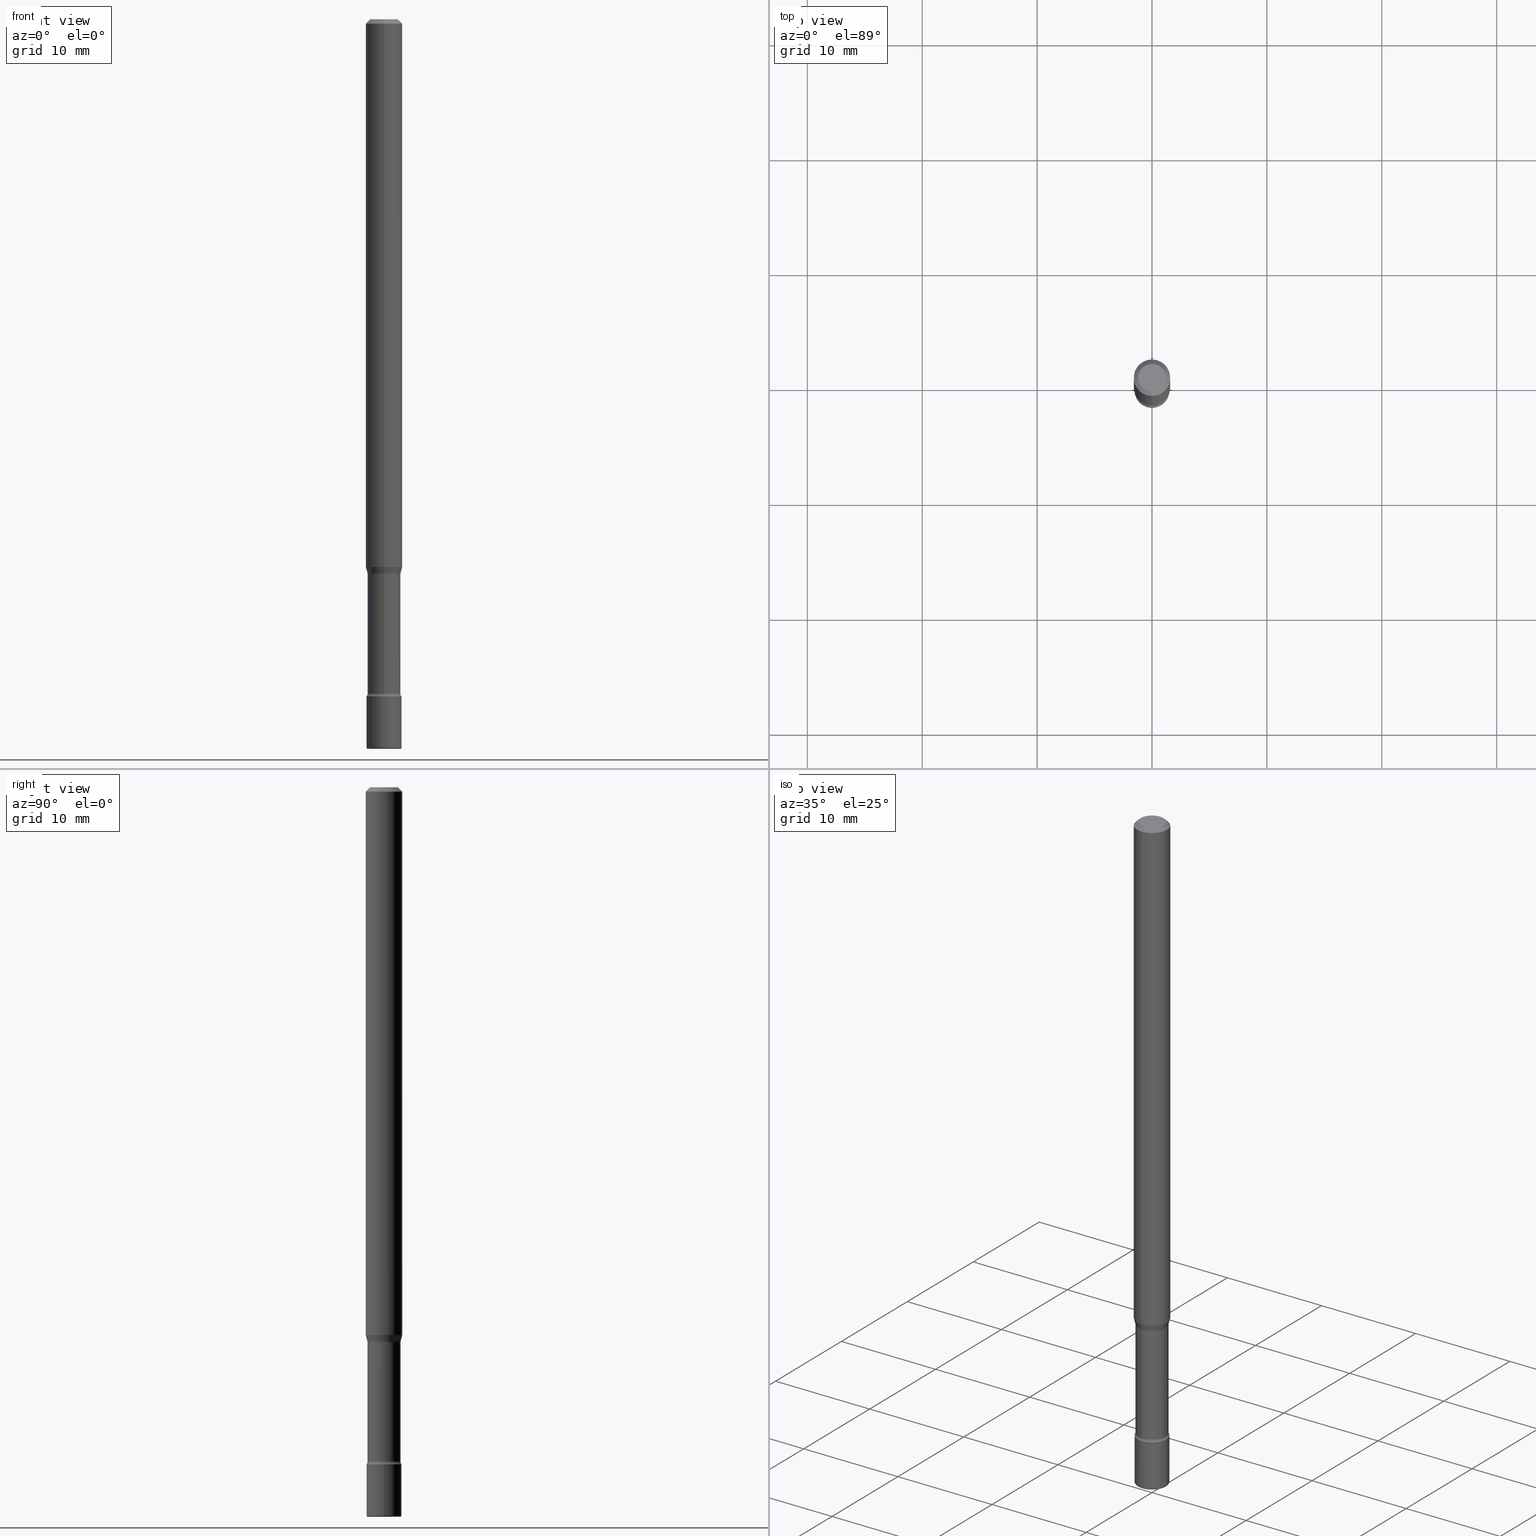
[diagram: canonical four-view strip — front | top / right | iso, engineering-drawing reading convention]
A machine part, canonical four-view strip (front | top / right | iso — engineering-drawing reading convention). The complete STEP part file that produces these views, byte-faithful:
ISO-10303-21;
HEADER;
FILE_DESCRIPTION (( 'STEP AP203' ),
    '1' );
FILE_NAME ('08977.STEP',
    '2024-03-06T20:13:32',
    ( '' ),
    ( '' ),
    'SwSTEP 2.0',
    'SolidWorks 2023',
    '' );
FILE_SCHEMA (( 'CONFIG_CONTROL_DESIGN' ));
ENDSEC;

DATA;
#1 = ADVANCED_FACE ( 'NONE', ( #392 ), #372, .F. ) ;
#2 = DIRECTION ( 'NONE',  ( -6.982962677686265922E-15, -1.000000000000000000, 4.843702116425999219E-15 ) ) ;
#3 = EDGE_LOOP ( 'NONE', ( #312, #232, #455, #241 ) ) ;
#4 = ORIENTED_EDGE ( 'NONE', *, *, #148, .T. ) ;
#5 = DIRECTION ( 'NONE',  ( -6.982962677686265922E-15, -1.000000000000000000, 3.491616935942579411E-15 ) ) ;
#6 = ORIENTED_EDGE ( 'NONE', *, *, #444, .T. ) ;
#7 = APPROVAL_STATUS ( 'not_yet_approved' ) ;
#8 = CARTESIAN_POINT ( 'NONE',  ( 4.641546279787803602E-29, -6.627411925226064456E-15, -1.898092501787273401 ) ) ;
#9 = AXIS2_PLACEMENT_3D ( 'NONE', #486, #393, #175 ) ;
#10 = LOCAL_TIME ( 15, 13, 32.00000000000000000, #327 ) ;
#11 = EDGE_LOOP ( 'NONE', ( #286, #525, #235, #546 ) ) ;
#12 = PERSON_AND_ORGANIZATION ( #212, #395 ) ;
#13 = CARTESIAN_POINT ( 'NONE',  ( -1.169113584055446105E-44, 1.669184350826100908E-30, 4.780733988912460139E-16 ) ) ;
#14 = EDGE_CURVE ( 'NONE', #554, #570, #42, .T. ) ;
#15 = ADVANCED_FACE ( 'NONE', ( #356 ), #350, .F. ) ;
#16 = VERTEX_POINT ( 'NONE', #220 ) ;
#17 = DIRECTION ( 'NONE',  ( -2.445374119236681714E-29, 3.491616935942579411E-15, 1.000000000000000000 ) ) ;
#18 = ORIENTED_EDGE ( 'NONE', *, *, #565, .F. ) ;
#19 = VERTEX_POINT ( 'NONE', #270 ) ;
#20 =( NAMED_UNIT ( * ) SI_UNIT ( $, .STERADIAN. ) SOLID_ANGLE_UNIT ( ) );
#21 = FACE_OUTER_BOUND ( 'NONE', #446, .T. ) ;
#22 = AXIS2_PLACEMENT_3D ( 'NONE', #62, #244, #55 ) ;
#23 = ADVANCED_FACE ( 'NONE', ( #358 ), #296, .F. ) ;
#24 = CIRCLE ( 'NONE', #9, 0.06000000000000001166 ) ;
#25 = DIRECTION ( 'NONE',  ( -2.445374119236681714E-29, 3.491616935942579411E-15, 1.000000000000000000 ) ) ;
#26 = COORDINATED_UNIVERSAL_TIME_OFFSET ( 5, 0, .BEHIND. ) ;
#27 = DIRECTION ( 'NONE',  ( -2.445374119236681714E-29, 3.491616935942579411E-15, 1.000000000000000000 ) ) ;
#28 = ORIENTED_EDGE ( 'NONE', *, *, #123, .F. ) ;
#29 = FACE_OUTER_BOUND ( 'NONE', #199, .T. ) ;
#30 = CYLINDRICAL_SURFACE ( 'NONE', #362, 0.06000000000000001166 ) ;
#31 = AXIS2_PLACEMENT_3D ( 'NONE', #326, #500, #195 ) ;
#32 = CARTESIAN_POINT ( 'NONE',  ( 6.113672015462840371E-29, -8.728703347107863365E-15, -2.499999999999999556 ) ) ;
#33 = APPROVAL ( #453, 'UNSPECIFIED' ) ;
#34 = DIRECTION ( 'NONE',  ( 1.000000000000000000, -6.982962677686266711E-15, 4.876176775795935793E-29 ) ) ;
#35 = DIRECTION ( 'NONE',  ( -2.445374119236681714E-29, 3.491616935942579411E-15, 1.000000000000000000 ) ) ;
#36 = CIRCLE ( 'NONE', #112, 0.01500000000000001853 ) ;
#37 = CIRCLE ( 'NONE', #161, 0.004999999999999767651 ) ;
#38 = UNCERTAINTY_MEASURE_WITH_UNIT (LENGTH_MEASURE( 1.000000000000000082E-05 ), #97, 'distance_accuracy_value', 'NONE');
#39 = CARTESIAN_POINT ( 'NONE',  ( 0.05500000000000001416, -9.112766294380606772E-15, -2.499999999999999556 ) ) ;
#40 = DIRECTION ( 'NONE',  ( -6.982962677686265922E-15, -1.000000000000000000, 3.491616935942579411E-15 ) ) ;
#41 = CARTESIAN_POINT ( 'NONE',  ( -3.938390950214588125E-16, -0.05640000000000663927, -1.901974787463810879 ) ) ;
#42 = LINE ( 'NONE', #92, #120 ) ;
#43 = EDGE_CURVE ( 'NONE', #275, #515, #57, .T. ) ;
#44 = DIRECTION ( 'NONE',  ( -1.000000000000000000, 6.982962677686265922E-15, -4.883557194083112340E-29 ) ) ;
#45 = ORIENTED_EDGE ( 'NONE', *, *, #480, .T. ) ;
#46 = AXIS2_PLACEMENT_3D ( 'NONE', #135, #48, #353 ) ;
#47 = ADVANCED_FACE ( 'NONE', ( #154 ), #415, .T. ) ;
#48 = DIRECTION ( 'NONE',  ( -2.445468806185136597E-29, 3.491481338843145583E-15, 1.000000000000000000 ) ) ;
#49 = CARTESIAN_POINT ( 'NONE',  ( 5.649647131350973229E-29, -8.066198791933100712E-15, -2.310251153914436806 ) ) ;
#50 = EDGE_LOOP ( 'NONE', ( #306, #76, #354, #196 ) ) ;
#51 = DIRECTION ( 'NONE',  ( -1.000000000000000000, 6.982962677686265922E-15, -4.883557194083112340E-29 ) ) ;
#52 = DIRECTION ( 'NONE',  ( -6.982962677686265922E-15, -1.000000000000000000, 3.483106191921935554E-15 ) ) ;
#53 = VERTEX_POINT ( 'NONE', #371 ) ;
#54 = ADVANCED_FACE ( 'NONE', ( #105 ), #170, .T. ) ;
#55 = DIRECTION ( 'NONE',  ( 1.000000000000000000, -6.982962677686262766E-15, 4.883557194083111219E-29 ) ) ;
#56 = VECTOR ( 'NONE', #186, 39.37007874015748143 ) ;
#57 = CIRCLE ( 'NONE', #427, 0.05500000000000001416 ) ;
#58 = CIRCLE ( 'NONE', #305, 0.01500000000000000291 ) ;
#59 = ORIENTED_EDGE ( 'NONE', *, *, #556, .T. ) ;
#60 = CARTESIAN_POINT ( 'NONE',  ( 5.649428380719043834E-29, -8.066512055288535170E-15, -2.310251153914436806 ) ) ;
#61 = EDGE_LOOP ( 'NONE', ( #450, #540, #394, #69 ) ) ;
#62 = CARTESIAN_POINT ( 'NONE',  ( 6.101444671431915719E-29, -8.711245940413648329E-15, -2.495000000000000107 ) ) ;
#63 = EDGE_CURVE ( 'NONE', #399, #402, #361, .T. ) ;
#64 = CARTESIAN_POINT ( 'NONE',  ( -1.169113584055446105E-44, 1.669184350826100908E-30, 4.780733988912460139E-16 ) ) ;
#65 = EDGE_CURVE ( 'NONE', #19, #554, #508, .T. ) ;
#66 = AXIS2_PLACEMENT_3D ( 'NONE', #183, #171, #307 ) ;
#67 = CARTESIAN_POINT ( 'NONE',  ( 4.651220012893355916E-29, -6.640709477380055554E-15, -1.901974787463811323 ) ) ;
#68 = CARTESIAN_POINT ( 'NONE',  ( -4.287811248607203282E-16, -0.06250000000000005551, -0.01499999999999981036 ) ) ;
#69 = ORIENTED_EDGE ( 'NONE', *, *, #518, .F. ) ;
#70 = PERSON_AND_ORGANIZATION ( #212, #395 ) ;
#71 = DIRECTION ( 'NONE',  ( -1.000000000000000000, 7.105427357601061812E-15, 0.000000000000000000 ) ) ;
#72 = ADVANCED_FACE ( 'NONE', ( #21 ), #83, .T. ) ;
#73 = DIRECTION ( 'NONE',  ( 2.445374119236681433E-29, -3.491616935942579411E-15, -1.000000000000000000 ) ) ;
#74 = CIRCLE ( 'NONE', #226, 0.05999999999999999778 ) ;
#75 = LINE ( 'NONE', #386, #122 ) ;
#76 = ORIENTED_EDGE ( 'NONE', *, *, #65, .F. ) ;
#77 = DIRECTION ( 'NONE',  ( 1.000000000000000000, -6.982962677686265922E-15, 4.876176775795935793E-29 ) ) ;
#78 = EDGE_CURVE ( 'NONE', #137, #53, #192, .T. ) ;
#79 = DIRECTION ( 'NONE',  ( -2.445374119236681994E-29, 3.491616935942579411E-15, 1.000000000000000000 ) ) ;
#80 = CIRCLE ( 'NONE', #338, 0.01500000000000000291 ) ;
#81 = DIRECTION ( 'NONE',  ( 2.445374119236681714E-29, -3.491616935942579411E-15, -1.000000000000000000 ) ) ;
#82 = PRODUCT_DEFINITION ( 'UNKNOWN', '', #126, #169 ) ;
#83 = TOROIDAL_SURFACE ( 'NONE', #22, 0.05500000000000000028, 0.004999999999999771988 ) ;
#84 = AXIS2_PLACEMENT_3D ( 'NONE', #526, #290, #259 ) ;
#85 = CC_DESIGN_APPROVAL ( #177, ( #150 ) ) ;
#86 = CARTESIAN_POINT ( 'NONE',  ( 4.007461029686965452E-16, 0.05640000000000001262, 2.811462037040845346E-16 ) ) ;
#87 = ORIENTED_EDGE ( 'NONE', *, *, #383, .T. ) ;
#88 = PLANE ( 'NONE',  #481 ) ;
#89 = EDGE_LOOP ( 'NONE', ( #93, #151, #108, #410 ) ) ;
#90 = ADVANCED_FACE ( 'NONE', ( #274 ), #571, .T. ) ;
#91 = CARTESIAN_POINT ( 'NONE',  ( 6.618217965397815086E-46, -9.462740114103690246E-32, -2.708274633491637065E-17 ) ) ;
#92 = CARTESIAN_POINT ( 'NONE',  ( 4.043777764598424555E-16, 0.05691111260565735741, -1.898092501787273623 ) ) ;
#93 = ORIENTED_EDGE ( 'NONE', *, *, #469, .F. ) ;
#94 = CALENDAR_DATE ( 2024, 6, 3 ) ;
#95 = CARTESIAN_POINT ( 'NONE',  ( 4.263256414561168444E-16, 0.05999999999999190703, -2.320000000000000284 ) ) ;
#96 = ORIENTED_EDGE ( 'NONE', *, *, #484, .T. ) ;
#97 =( CONVERSION_BASED_UNIT ( 'INCH', #106 ) LENGTH_UNIT ( ) NAMED_UNIT ( #231 ) );
#98 = ADVANCED_FACE ( 'NONE', ( #409 ), #511, .T. ) ;
#99 = DIRECTION ( 'NONE',  ( -2.445374119236681714E-29, 3.491616935942579411E-15, 1.000000000000000000 ) ) ;
#100 = APPROVAL_DATE_TIME ( #504, #33 ) ;
#101 = DIRECTION ( 'NONE',  ( -6.982962677686265922E-15, -1.000000000000000000, 4.800201346603757313E-15 ) ) ;
#102 = AXIS2_PLACEMENT_3D ( 'NONE', #478, #73, #429 ) ;
#103 = CIRCLE ( 'NONE', #437, 0.004999999999999767651 ) ;
#104 =( LENGTH_UNIT ( ) NAMED_UNIT ( * ) SI_UNIT ( $, .METRE. ) );
#105 = FACE_OUTER_BOUND ( 'NONE', #145, .T. ) ;
#106 = LENGTH_MEASURE_WITH_UNIT ( LENGTH_MEASURE( 0.02539999999999999897 ), #104 );
#107 = CARTESIAN_POINT ( 'NONE',  ( -0.05999999999999988676, -8.284920298957589417E-15, -2.495000000000000107 ) ) ;
#108 = ORIENTED_EDGE ( 'NONE', *, *, #370, .T. ) ;
#109 = DATE_AND_TIME ( #416, #533 ) ;
#110 = CARTESIAN_POINT ( 'NONE',  ( -0.06000000000000001166, 4.263256414560601944E-16, -2.951361054152943763E-30 ) ) ;
#111 = AXIS2_PLACEMENT_3D ( 'NONE', #285, #321, #101 ) ;
#112 = AXIS2_PLACEMENT_3D ( 'NONE', #363, #139, #317 ) ;
#113 = CARTESIAN_POINT ( 'NONE',  ( 0.000000000000000000, 0.000000000000000000, 0.000000000000000000 ) ) ;
#114 = SECURITY_CLASSIFICATION_LEVEL ( 'unclassified' ) ;
#115 = ADVANCED_FACE ( 'NONE', ( #412 ), #149, .T. ) ;
#116 = CARTESIAN_POINT ( 'NONE',  ( 6.101444671431915719E-29, -8.711245940413648329E-15, -2.495000000000000107 ) ) ;
#117 = CC_DESIGN_PERSON_AND_ORGANIZATION_ASSIGNMENT ( #276, #470, ( #359 ) ) ;
#118 = FACE_OUTER_BOUND ( 'NONE', #3, .T. ) ;
#119 = EDGE_LOOP ( 'NONE', ( #349, #185 ) ) ;
#120 = VECTOR ( 'NONE', #568, 39.37007874015748143 ) ;
#121 = DIRECTION ( 'NONE',  ( -2.438088387897960049E-29, 3.491481338843145188E-15, 1.000000000000000000 ) ) ;
#122 = VECTOR ( 'NONE', #561, 39.37007874015748854 ) ;
#123 = EDGE_CURVE ( 'NONE', #266, #184, #74, .T. ) ;
#124 = DIRECTION ( 'NONE',  ( -2.445374119236681994E-29, 3.491616935942579411E-15, 1.000000000000000000 ) ) ;
#125 = DIRECTION ( 'NONE',  ( 1.000000000000000000, -6.982962677686262766E-15, 4.883557194083111219E-29 ) ) ;
#126 = PRODUCT_DEFINITION_FORMATION_WITH_SPECIFIED_SOURCE ( 'ANY', '', #359, .NOT_KNOWN. ) ;
#127 = CARTESIAN_POINT ( 'NONE',  ( 4.364351673553919652E-16, 0.06249999999999995143, -0.01500000000000024578 ) ) ;
#128 = CLOSED_SHELL ( 'NONE', ( #221, #351, #222, #345, #72, #249 ) ) ;
#129 = ORIENTED_EDGE ( 'NONE', *, *, #463, .F. ) ;
#130 = AXIS2_PLACEMENT_3D ( 'NONE', #113, #258, #213 ) ;
#131 = APPROVAL_PERSON_ORGANIZATION ( #544, #33, #147 ) ;
#132 = DIRECTION ( 'NONE',  ( -6.982962677686263555E-15, -1.000000000000000000, 0.000000000000000000 ) ) ;
#133 = EDGE_CURVE ( 'NONE', #16, #507, #299, .T. ) ;
#134 = ORIENTED_EDGE ( 'NONE', *, *, #262, .F. ) ;
#135 = CARTESIAN_POINT ( 'NONE',  ( 5.673487630349517039E-29, -8.100236706116098414E-15, -2.320000000000000284 ) ) ;
#136 = ORIENTED_EDGE ( 'NONE', *, *, #253, .T. ) ;
#137 = VERTEX_POINT ( 'NONE', #107 ) ;
#138 = CARTESIAN_POINT ( 'NONE',  ( 4.440892098501085673E-16, 0.06249999999999347050, -1.877234490073830253 ) ) ;
#139 = DIRECTION ( 'NONE',  ( 1.000000000000000000, -7.105427357601001070E-15, 4.926317169127620293E-29 ) ) ;
#140 = EDGE_CURVE ( 'NONE', #554, #19, #474, .T. ) ;
#141 = AXIS2_PLACEMENT_3D ( 'NONE', #294, #475, #422 ) ;
#142 = ORIENTED_EDGE ( 'NONE', *, *, #484, .F. ) ;
#143 = COORDINATED_UNIVERSAL_TIME_OFFSET ( 5, 0, .BEHIND. ) ;
#144 = CARTESIAN_POINT ( 'NONE',  ( 3.668061178855029262E-31, -5.237425403913879570E-17, -0.01500000000000002720 ) ) ;
#145 = EDGE_LOOP ( 'NONE', ( #180, #560, #272, #439 ) ) ;
#146 = CARTESIAN_POINT ( 'NONE',  ( 5.673267956629101509E-29, -8.100551291386784361E-15, -2.320000000000000284 ) ) ;
#147 = APPROVAL_ROLE ( '' ) ;
#148 = EDGE_CURVE ( 'NONE', #570, #229, #256, .T. ) ;
#149 = CYLINDRICAL_SURFACE ( 'NONE', #396, 0.06250000000000000000 ) ;
#150 = SECURITY_CLASSIFICATION ( '', '', #114 ) ;
#151 = ORIENTED_EDGE ( 'NONE', *, *, #423, .T. ) ;
#152 = AXIS2_PLACEMENT_3D ( 'NONE', #198, #454, #52 ) ;
#153 = DIRECTION ( 'NONE',  ( 1.000000000000000000, 0.000000000000000000, 0.000000000000000000 ) ) ;
#154 = FACE_OUTER_BOUND ( 'NONE', #230, .T. ) ;
#155 = MANIFOLD_SOLID_BREP ( 'Body-Move/Copy2[1]', #128 ) ;
#156 = ORIENTED_EDGE ( 'NONE', *, *, #444, .F. ) ;
#157 = CARTESIAN_POINT ( 'NONE',  ( 5.649647131350973229E-29, -8.066198791933100712E-15, -2.310251153914436806 ) ) ;
#158 = FACE_OUTER_BOUND ( 'NONE', #224, .T. ) ;
#159 = EDGE_CURVE ( 'NONE', #554, #360, #36, .T. ) ;
#160 = EDGE_CURVE ( 'NONE', #227, #496, #418, .T. ) ;
#161 = AXIS2_PLACEMENT_3D ( 'NONE', #477, #207, #295 ) ;
#162 = APPROVAL_PERSON_ORGANIZATION ( #548, #435, #499 ) ;
#163 = PLANE ( 'NONE',  #352 ) ;
#164 = CALENDAR_DATE ( 2024, 6, 3 ) ;
#165 = DIRECTION ( 'NONE',  ( -2.445468806185136597E-29, 3.491481338843145583E-15, 1.000000000000000000 ) ) ;
#166 = ORIENTED_EDGE ( 'NONE', *, *, #480, .F. ) ;
#167 = COORDINATED_UNIVERSAL_TIME_OFFSET ( 5, 0, .BEHIND. ) ;
#168 = FACE_OUTER_BOUND ( 'NONE', #452, .T. ) ;
#169 = DESIGN_CONTEXT ( 'detailed design', #550, 'design' ) ;
#170 = CONICAL_SURFACE ( 'NONE', #216, 0.06250000000000000000, 0.7853981633974485010 ) ;
#171 = DIRECTION ( 'NONE',  ( -2.445374119236681714E-29, 3.491616935942579411E-15, 1.000000000000000000 ) ) ;
#172 = CIRCLE ( 'NONE', #247, 0.04749999999999998668 ) ;
#173 = CARTESIAN_POINT ( 'NONE',  ( 4.440892098501086659E-16, 0.06249999999999993755, -0.01500000000000024578 ) ) ;
#174 = ORIENTED_EDGE ( 'NONE', *, *, #253, .F. ) ;
#175 = DIRECTION ( 'NONE',  ( 1.000000000000000000, -6.982962677686266711E-15, 0.000000000000000000 ) ) ;
#176 = ORIENTED_EDGE ( 'NONE', *, *, #423, .F. ) ;
#177 = APPROVAL ( #379, 'UNSPECIFIED' ) ;
#178 = LOCAL_TIME ( 15, 13, 32.00000000000000000, #236 ) ;
#179 = CARTESIAN_POINT ( 'NONE',  ( 4.189777606612326922E-16, 0.05999999999999190009, -2.320000000000000284 ) ) ;
#180 = ORIENTED_EDGE ( 'NONE', *, *, #489, .F. ) ;
#181 = TOROIDAL_SURFACE ( 'NONE', #291, 0.05500000000000000028, 0.004999999999999771988 ) ;
#182 = APPROVAL_PERSON_ORGANIZATION ( #70, #177, #420 ) ;
#183 = CARTESIAN_POINT ( 'NONE',  ( 4.651039920704693219E-29, -6.640967379644431194E-15, -1.901974787463811323 ) ) ;
#184 = VERTEX_POINT ( 'NONE', #95 ) ;
#185 = ORIENTED_EDGE ( 'NONE', *, *, #489, .T. ) ;
#186 = DIRECTION ( 'NONE',  ( -2.445374119236681994E-29, 3.491616935942579411E-15, 1.000000000000000000 ) ) ;
#187 = EDGE_CURVE ( 'NONE', #507, #16, #397, .T. ) ;
#188 = ORIENTED_EDGE ( 'NONE', *, *, #187, .F. ) ;
#189 = ORIENTED_EDGE ( 'NONE', *, *, #65, .T. ) ;
#190 = PERSON_AND_ORGANIZATION_ROLE ( 'creator' ) ;
#191 = DIRECTION ( 'NONE',  ( -6.982962677686265133E-15, -1.000000000000000000, 3.491616935942579411E-15 ) ) ;
#192 = CIRCLE ( 'NONE', #407, 0.06000000000000001166 ) ;
#193 = ORIENTED_EDGE ( 'NONE', *, *, #443, .F. ) ;
#194 = PERSON_AND_ORGANIZATION_ROLE ( 'design_supplier' ) ;
#195 = DIRECTION ( 'NONE',  ( 1.000000000000000000, -6.982962677686268288E-15, 0.000000000000000000 ) ) ;
#196 = ORIENTED_EDGE ( 'NONE', *, *, #432, .T. ) ;
#197 = DIRECTION ( 'NONE',  ( 0.000000000000000000, 0.000000000000000000, 1.000000000000000000 ) ) ;
#198 = CARTESIAN_POINT ( 'NONE',  ( 3.668061178855029262E-31, -5.237425403913879570E-17, -0.01500000000000002720 ) ) ;
#199 = EDGE_LOOP ( 'NONE', ( #243, #488, #314, #193 ) ) ;
#200 = APPLICATION_PROTOCOL_DEFINITION ( 'international standard', 'config_control_design', 1994, #464 ) ;
#201 = DIRECTION ( 'NONE',  ( -6.982962677686265922E-15, -1.000000000000000000, 3.491616935942578228E-15 ) ) ;
#202 = AXIS2_PLACEMENT_3D ( 'NONE', #8, #502, #280 ) ;
#203 = CONICAL_SURFACE ( 'NONE', #337, 0.05691111260566398405, 0.2617993877991477980 ) ;
#204 = CARTESIAN_POINT ( 'NONE',  ( 4.590540637765013865E-29, -6.554583738277316538E-15, -1.877234490073830031 ) ) ;
#205 = LINE ( 'NONE', #68, #300 ) ;
#206 = CC_DESIGN_PERSON_AND_ORGANIZATION_ASSIGNMENT ( #403, #190, ( #126 ) ) ;
#207 = DIRECTION ( 'NONE',  ( -6.982962677686266711E-15, -1.000000000000000000, 3.491481338843145583E-15 ) ) ;
#208 = AXIS2_PLACEMENT_3D ( 'NONE', #313, #263, #440 ) ;
#209 = LOCAL_TIME ( 15, 13, 32.00000000000000000, #143 ) ;
#210 = CYLINDRICAL_SURFACE ( 'NONE', #84, 0.06250000000000000000 ) ;
#211 = DIRECTION ( 'NONE',  ( -2.445468806185136597E-29, 3.491481338843145583E-15, 1.000000000000000000 ) ) ;
#212 = PERSON ( 'UNSPECIFIED', 'UNSPECIFIED', 'UNSPECIFIED', ('UNSPECIFIED'), ('UNSPECIFIED'), ('UNSPECIFIED') ) ;
#213 = DIRECTION ( 'NONE',  ( 1.000000000000000000, -6.982962677686266711E-15, 4.876176775795935793E-29 ) ) ;
#214 = CARTESIAN_POINT ( 'NONE',  ( -4.364351673553456197E-16, -0.06250000000000653644, -1.877234490073829587 ) ) ;
#215 = ADVANCED_FACE ( 'NONE', ( #234 ), #373, .F. ) ;
#216 = AXIS2_PLACEMENT_3D ( 'NONE', #144, #366, #467 ) ;
#217 = CARTESIAN_POINT ( 'NONE',  ( -4.985835351867528230E-16, -0.07140000000000663871, -1.901974787463810879 ) ) ;
#218 = AXIS2_PLACEMENT_3D ( 'NONE', #562, #35, #2 ) ;
#219 = CARTESIAN_POINT ( 'NONE',  ( 0.06000000000000001166, -4.189777606611760914E-16, 2.925706065477562106E-30 ) ) ;
#220 = CARTESIAN_POINT ( 'NONE',  ( -4.364351673553912750E-16, -0.06250000000000005551, -0.01499999999999981036 ) ) ;
#221 = ADVANCED_FACE ( 'NONE', ( #483 ), #30, .T. ) ;
#222 = ADVANCED_FACE ( 'NONE', ( #557 ), #163, .T. ) ;
#223 = CARTESIAN_POINT ( 'NONE',  ( 3.668061178855029262E-31, -5.237425403913879570E-17, -0.01500000000000002720 ) ) ;
#224 = EDGE_LOOP ( 'NONE', ( #166, #357 ) ) ;
#225 = DIRECTION ( 'NONE',  ( -6.982962677686265922E-15, -1.000000000000000000, 4.553079989440439092E-15 ) ) ;
#226 = AXIS2_PLACEMENT_3D ( 'NONE', #146, #240, #417 ) ;
#227 = VERTEX_POINT ( 'NONE', #521 ) ;
#228 = EDGE_CURVE ( 'NONE', #566, #16, #205, .T. ) ;
#229 = VERTEX_POINT ( 'NONE', #214 ) ;
#230 = EDGE_LOOP ( 'NONE', ( #492, #530, #472, #142 ) ) ;
#231 = DIMENSIONAL_EXPONENTS ( 1.000000000000000000, 0.000000000000000000, 0.000000000000000000, 0.000000000000000000, 0.000000000000000000, 0.000000000000000000, 0.000000000000000000 ) ;
#232 = ORIENTED_EDGE ( 'NONE', *, *, #78, .T. ) ;
#233 = APPROVAL_DATE_TIME ( #273, #435 ) ;
#234 = FACE_OUTER_BOUND ( 'NONE', #89, .T. ) ;
#235 = ORIENTED_EDGE ( 'NONE', *, *, #262, .T. ) ;
#236 = COORDINATED_UNIVERSAL_TIME_OFFSET ( 5, 0, .BEHIND. ) ;
#237 = CARTESIAN_POINT ( 'NONE',  ( 4.641546279787803602E-29, -6.627411925226064456E-15, -1.898092501787273401 ) ) ;
#238 = CIRCLE ( 'NONE', #66, 0.05639999999999999181 ) ;
#239 = EDGE_LOOP ( 'NONE', ( #341, #87, #494, #156 ) ) ;
#240 = DIRECTION ( 'NONE',  ( -2.445374119236681714E-29, 3.491616935942579411E-15, 1.000000000000000000 ) ) ;
#241 = ORIENTED_EDGE ( 'NONE', *, *, #160, .F. ) ;
#242 = EDGE_CURVE ( 'NONE', #137, #227, #301, .T. ) ;
#243 = ORIENTED_EDGE ( 'NONE', *, *, #140, .F. ) ;
#244 = DIRECTION ( 'NONE',  ( -2.445468806185136597E-29, 3.491481338843145583E-15, 1.000000000000000000 ) ) ;
#245 = SHAPE_DEFINITION_REPRESENTATION ( #468, #387 ) ;
#246 = DIRECTION ( 'NONE',  ( 1.000000000000000000, -6.982962677686266711E-15, 0.000000000000000000 ) ) ;
#247 = AXIS2_PLACEMENT_3D ( 'NONE', #421, #27, #378 ) ;
#248 = DATE_TIME_ROLE ( 'classification_date' ) ;
#249 = ADVANCED_FACE ( 'NONE', ( #118 ), #479, .T. ) ;
#250 = DIRECTION ( 'NONE',  ( -6.982962677686265922E-15, -1.000000000000000000, 3.491616935942579411E-15 ) ) ;
#251 = DIRECTION ( 'NONE',  ( -2.445374119236681714E-29, 3.491616935942579411E-15, 1.000000000000000000 ) ) ;
#252 = DIRECTION ( 'NONE',  ( -2.445374119236681714E-29, 3.491616935942579411E-15, 1.000000000000000000 ) ) ;
#253 = EDGE_CURVE ( 'NONE', #275, #137, #103, .T. ) ;
#254 = DIRECTION ( 'NONE',  ( -2.445374119236681714E-29, 3.491616935942579411E-15, 1.000000000000000000 ) ) ;
#255 = AXIS2_PLACEMENT_3D ( 'NONE', #514, #25, #191 ) ;
#256 = CIRCLE ( 'NONE', #572, 0.06250000000000000000 ) ;
#257 = APPROVAL_DATE_TIME ( #109, #177 ) ;
#258 = DIRECTION ( 'NONE',  ( -2.445468806185136597E-29, 3.491481338843145583E-15, 1.000000000000000000 ) ) ;
#259 = DIRECTION ( 'NONE',  ( -6.982962677686265922E-15, -1.000000000000000000, 3.491616935942578228E-15 ) ) ;
#260 = FACE_OUTER_BOUND ( 'NONE', #319, .T. ) ;
#261 = VECTOR ( 'NONE', #445, 39.37007874015748143 ) ;
#262 = EDGE_CURVE ( 'NONE', #19, #229, #75, .T. ) ;
#263 = DIRECTION ( 'NONE',  ( -2.445468806185136597E-29, 3.491481338843145583E-15, 1.000000000000000000 ) ) ;
#264 = LOCAL_TIME ( 15, 13, 32.00000000000000000, #167 ) ;
#265 = CARTESIAN_POINT ( 'NONE',  ( 3.840629472727447874E-16, 0.04749999999999998668, -1.929345507921888436E-16 ) ) ;
#266 = VERTEX_POINT ( 'NONE', #517 ) ;
#267 = DIRECTION ( 'NONE',  ( -2.445374119236681714E-29, 3.491616935942579411E-15, 1.000000000000000000 ) ) ;
#268 = EDGE_LOOP ( 'NONE', ( #28, #537 ) ) ;
#269 = DIRECTION ( 'NONE',  ( -6.982962677686265922E-15, -1.000000000000000000, 3.491616935942579411E-15 ) ) ;
#270 = CARTESIAN_POINT ( 'NONE',  ( -3.974081752709055496E-16, -0.05691111260567060376, -1.898092501787272957 ) ) ;
#271 = AXIS2_PLACEMENT_3D ( 'NONE', #355, #346, #538 ) ;
#272 = ORIENTED_EDGE ( 'NONE', *, *, #133, .T. ) ;
#273 = DATE_AND_TIME ( #94, #10 ) ;
#274 = FACE_OUTER_BOUND ( 'NONE', #11, .T. ) ;
#275 = VERTEX_POINT ( 'NONE', #430 ) ;
#276 = PERSON_AND_ORGANIZATION ( #212, #395 ) ;
#277 = DIRECTION ( 'NONE',  ( 1.000000000000000000, -6.982962677686260400E-15, 0.000000000000000000 ) ) ;
#278 = ORIENTED_EDGE ( 'NONE', *, *, #469, .T. ) ;
#279 = CARTESIAN_POINT ( 'NONE',  ( 4.242334931549755361E-16, 0.05691111260565735741, -1.898092501787273623 ) ) ;
#280 = DIRECTION ( 'NONE',  ( -6.982962677686265922E-15, -1.000000000000000000, 4.800201346603757313E-15 ) ) ;
#281 = CC_DESIGN_DATE_AND_TIME_ASSIGNMENT ( #516, #248, ( #150 ) ) ;
#282 = VECTOR ( 'NONE', #124, 39.37007874015748143 ) ;
#283 = CC_DESIGN_APPROVAL ( #33, ( #82 ) ) ;
#284 = CARTESIAN_POINT ( 'NONE',  ( -4.985835351867431595E-16, -0.07140000000000810976, -2.310251153914436806 ) ) ;
#285 = CARTESIAN_POINT ( 'NONE',  ( 4.641546279787803602E-29, -6.627411925226064456E-15, -1.898092501787273401 ) ) ;
#286 = ORIENTED_EDGE ( 'NONE', *, *, #14, .F. ) ;
#287 = DIRECTION ( 'NONE',  ( -6.982962677686266711E-15, -1.000000000000000000, 0.000000000000000000 ) ) ;
#288 = DIRECTION ( 'NONE',  ( -2.445374119236681714E-29, 3.491616935942579411E-15, 1.000000000000000000 ) ) ;
#289 = EDGE_CURVE ( 'NONE', #515, #53, #37, .T. ) ;
#290 = DIRECTION ( 'NONE',  ( -2.445374119236681714E-29, 3.491616935942579411E-15, 1.000000000000000000 ) ) ;
#291 = AXIS2_PLACEMENT_3D ( 'NONE', #116, #426, #125 ) ;
#292 = AXIS2_PLACEMENT_3D ( 'NONE', #157, #251, #555 ) ;
#293 = CC_DESIGN_DATE_AND_TIME_ASSIGNMENT ( #456, #513, ( #82 ) ) ;
#294 = CARTESIAN_POINT ( 'NONE',  ( 3.840629472728058748E-16, 0.05499999999999128503, -2.500000000000000000 ) ) ;
#295 = DIRECTION ( 'NONE',  ( 1.000000000000000000, -6.982962677686463137E-15, 0.000000000000000000 ) ) ;
#296 = PLANE ( 'NONE',  #102 ) ;
#297 = CARTESIAN_POINT ( 'NONE',  ( 5.673487630349517039E-29, -8.100236706116098414E-15, -2.320000000000000284 ) ) ;
#298 = ORIENTED_EDGE ( 'NONE', *, *, #457, .T. ) ;
#299 = CIRCLE ( 'NONE', #447, 0.06250000000000000000 ) ;
#300 = VECTOR ( 'NONE', #340, 39.37007874015748143 ) ;
#301 = LINE ( 'NONE', #110, #542 ) ;
#302 = DIRECTION ( 'NONE',  ( -6.982962677686265133E-15, -1.000000000000000000, 3.491616935942579411E-15 ) ) ;
#303 = CARTESIAN_POINT ( 'NONE',  ( 4.135358722124349706E-16, 0.05639999999999196351, -2.310251153914437250 ) ) ;
#304 = AXIS2_PLACEMENT_3D ( 'NONE', #431, #442, #40 ) ;
#305 = AXIS2_PLACEMENT_3D ( 'NONE', #391, #535, #434 ) ;
#306 = ORIENTED_EDGE ( 'NONE', *, *, #159, .F. ) ;
#307 = DIRECTION ( 'NONE',  ( -6.982962677686265922E-15, -1.000000000000000000, 4.843702116425999219E-15 ) ) ;
#308 = CC_DESIGN_SECURITY_CLASSIFICATION ( #150, ( #126 ) ) ;
#309 = EDGE_LOOP ( 'NONE', ( #45, #136, #498, #482 ) ) ;
#310 = LINE ( 'NONE', #390, #389 ) ;
#311 = ADVANCED_FACE ( 'NONE', ( #168 ), #203, .T. ) ;
#312 = ORIENTED_EDGE ( 'NONE', *, *, #242, .F. ) ;
#313 = CARTESIAN_POINT ( 'NONE',  ( 6.113672015462840371E-29, -8.728703347107863365E-15, -2.499999999999999556 ) ) ;
#314 = ORIENTED_EDGE ( 'NONE', *, *, #463, .T. ) ;
#315 = ADVANCED_FACE ( 'NONE', ( #339 ), #210, .T. ) ;
#316 = ORIENTED_EDGE ( 'NONE', *, *, #289, .T. ) ;
#317 = DIRECTION ( 'NONE',  ( 7.105427357601001859E-15, 1.000000000000000000, 0.000000000000000000 ) ) ;
#318 = CIRCLE ( 'NONE', #46, 0.05999999999999999778 ) ;
#319 = EDGE_LOOP ( 'NONE', ( #539, #323, #298, #503 ) ) ;
#320 = PERSON_AND_ORGANIZATION ( #212, #395 ) ;
#321 = DIRECTION ( 'NONE',  ( -2.445374119236681714E-29, 3.491616935942579411E-15, 1.000000000000000000 ) ) ;
#322 = ADVANCED_FACE ( 'NONE', ( #29 ), #497, .F. ) ;
#323 = ORIENTED_EDGE ( 'NONE', *, *, #325, .F. ) ;
#324 = MECHANICAL_CONTEXT ( 'NONE', #464, 'mechanical' ) ;
#325 = EDGE_CURVE ( 'NONE', #365, #566, #172, .T. ) ;
#326 = CARTESIAN_POINT ( 'NONE',  ( 5.673487630349517039E-29, -8.100236706116098414E-15, -2.320000000000000284 ) ) ;
#327 = COORDINATED_UNIVERSAL_TIME_OFFSET ( 5, 0, .BEHIND. ) ;
#328 = DIRECTION ( 'NONE',  ( -6.982962677686265922E-15, -1.000000000000000000, 3.483106191921935554E-15 ) ) ;
#329 = CIRCLE ( 'NONE', #534, 0.01500000000000001853 ) ;
#330 = ORIENTED_EDGE ( 'NONE', *, *, #160, .T. ) ;
#331 = CALENDAR_DATE ( 2024, 6, 3 ) ;
#332 = DIRECTION ( 'NONE',  ( -2.445374119236681714E-29, 3.491616935942579411E-15, 1.000000000000000000 ) ) ;
#333 = CARTESIAN_POINT ( 'NONE',  ( -0.05500000000000000028, -8.320447435745593669E-15, -2.495000000000000107 ) ) ;
#334 = PRODUCT_RELATED_PRODUCT_CATEGORY ( 'detail', '', ( #359 ) ) ;
#335 = PLANE ( 'NONE',  #141 ) ;
#336 = AXIS2_PLACEMENT_3D ( 'NONE', #60, #547, #462 ) ;
#337 = AXIS2_PLACEMENT_3D ( 'NONE', #433, #252, #342 ) ;
#338 = AXIS2_PLACEMENT_3D ( 'NONE', #284, #51, #287 ) ;
#339 = FACE_OUTER_BOUND ( 'NONE', #239, .T. ) ;
#340 = DIRECTION ( 'NONE',  ( -4.851104656540965064E-15, -0.7071067811865501263, -0.7071067811865449082 ) ) ;
#341 = ORIENTED_EDGE ( 'NONE', *, *, #565, .T. ) ;
#342 = DIRECTION ( 'NONE',  ( -6.982962677686265922E-15, -1.000000000000000000, 4.800201346603757313E-15 ) ) ;
#343 = AXIS2_PLACEMENT_3D ( 'NONE', #91, #564, #302 ) ;
#344 = FACE_OUTER_BOUND ( 'NONE', #268, .T. ) ;
#345 = ADVANCED_FACE ( 'NONE', ( #158 ), #335, .T. ) ;
#346 = DIRECTION ( 'NONE',  ( -2.445374119236681714E-29, 3.491616935942579411E-15, 1.000000000000000000 ) ) ;
#347 = MANIFOLD_SOLID_BREP ( 'Body-Move/Copy2[2]', #520 ) ;
#348 = LINE ( 'NONE', #219, #438 ) ;
#349 = ORIENTED_EDGE ( 'NONE', *, *, #325, .T. ) ;
#350 = TOROIDAL_SURFACE ( 'NONE', #436, 0.07140000000000003288, 0.01500000000000000812 ) ;
#351 = ADVANCED_FACE ( 'NONE', ( #380 ), #181, .T. ) ;
#352 = AXIS2_PLACEMENT_3D ( 'NONE', #297, #121, #77 ) ;
#353 = DIRECTION ( 'NONE',  ( 1.000000000000000000, -6.982962677686268288E-15, 0.000000000000000000 ) ) ;
#354 = ORIENTED_EDGE ( 'NONE', *, *, #443, .T. ) ;
#355 = CARTESIAN_POINT ( 'NONE',  ( 5.649428380719043834E-29, -8.066512055288535170E-15, -2.310251153914436806 ) ) ;
#356 = FACE_OUTER_BOUND ( 'NONE', #536, .T. ) ;
#357 = ORIENTED_EDGE ( 'NONE', *, *, #43, .F. ) ;
#358 = FACE_OUTER_BOUND ( 'NONE', #119, .T. ) ;
#359 = PRODUCT ( '08977', '08977', '', ( #324 ) ) ;
#360 = VERTEX_POINT ( 'NONE', #523 ) ;
#361 = CIRCLE ( 'NONE', #336, 0.05640000000000002650 ) ;
#362 = AXIS2_PLACEMENT_3D ( 'NONE', #559, #165, #34 ) ;
#363 = CARTESIAN_POINT ( 'NONE',  ( 5.073275133327580133E-16, 0.07139999999999335767, -1.901974787463811545 ) ) ;
#364 = ADVANCED_FACE ( 'NONE', ( #344 ), #88, .F. ) ;
#365 = VERTEX_POINT ( 'NONE', #265 ) ;
#366 = DIRECTION ( 'NONE',  ( 2.445374119236681714E-29, -3.491616935942579411E-15, -1.000000000000000000 ) ) ;
#367 = CALENDAR_DATE ( 2024, 6, 3 ) ;
#368 = DIRECTION ( 'NONE',  ( -6.982962677686265922E-15, -1.000000000000000000, 4.800201346603757313E-15 ) ) ;
#369 = APPLICATION_PROTOCOL_DEFINITION ( 'international standard', 'config_control_design', 1994, #550 ) ;
#370 = EDGE_CURVE ( 'NONE', #184, #266, #522, .T. ) ;
#371 = CARTESIAN_POINT ( 'NONE',  ( 0.05999999999999988676, -9.130223701074824963E-15, -2.495000000000000107 ) ) ;
#372 = TOROIDAL_SURFACE ( 'NONE', #304, 0.07139999999999999125, 0.01500000000000001853 ) ;
#373 = TOROIDAL_SURFACE ( 'NONE', #292, 0.07140000000000003288, 0.01500000000000000812 ) ;
#374 = ORIENTED_EDGE ( 'NONE', *, *, #78, .F. ) ;
#375 = PERSON_AND_ORGANIZATION_ROLE ( 'classification_officer' ) ;
#376 = DIRECTION ( 'NONE',  ( -2.445374119236681714E-29, 3.491616935942579411E-15, 1.000000000000000000 ) ) ;
#377 = EDGE_LOOP ( 'NONE', ( #543, #278, #96, #129 ) ) ;
#378 = DIRECTION ( 'NONE',  ( -6.982962677686265133E-15, -1.000000000000000000, 3.491616935942579411E-15 ) ) ;
#379 = APPROVAL_STATUS ( 'not_yet_approved' ) ;
#380 = FACE_OUTER_BOUND ( 'NONE', #309, .T. ) ;
#381 = VECTOR ( 'NONE', #567, 39.37007874015748143 ) ;
#382 = CIRCLE ( 'NONE', #506, 0.06250000000000000000 ) ;
#383 = EDGE_CURVE ( 'NONE', #570, #507, #449, .T. ) ;
#384 = DIRECTION ( 'NONE',  ( -2.445374119236681714E-29, 3.491616935942579411E-15, 1.000000000000000000 ) ) ;
#385 = EDGE_LOOP ( 'NONE', ( #401, #4, #6, #188 ) ) ;
#386 = CARTESIAN_POINT ( 'NONE',  ( -3.974081752709055496E-16, -0.05691111260567060376, -1.898092501787272957 ) ) ;
#387 = ADVANCED_BREP_SHAPE_REPRESENTATION ( '08977', ( #155, #347, #405 ), #519 ) ;
#388 = CARTESIAN_POINT ( 'NONE',  ( -3.938390950214490997E-16, -0.05640000000000809643, -2.310251153914436806 ) ) ;
#389 = VECTOR ( 'NONE', #79, 39.37007874015748143 ) ;
#390 = CARTESIAN_POINT ( 'NONE',  ( -4.364351673553916201E-16, -0.06250000000000000000, 6.962994573876572271E-16 ) ) ;
#391 = CARTESIAN_POINT ( 'NONE',  ( 5.073275133327682685E-16, 0.07139999999999196989, -2.310251153914437250 ) ) ;
#392 = FACE_OUTER_BOUND ( 'NONE', #50, .T. ) ;
#393 = DIRECTION ( 'NONE',  ( -2.445468806185136597E-29, 3.491481338843145583E-15, 1.000000000000000000 ) ) ;
#394 = ORIENTED_EDGE ( 'NONE', *, *, #404, .F. ) ;
#395 = ORGANIZATION ( 'UNSPECIFIED', 'UNSPECIFIED', '' ) ;
#396 = AXIS2_PLACEMENT_3D ( 'NONE', #13, #99, #201 ) ;
#397 = CIRCLE ( 'NONE', #152, 0.06250000000000000000 ) ;
#398 = DIRECTION ( 'NONE',  ( -2.445374119236681433E-29, 3.491616935942579411E-15, 1.000000000000000000 ) ) ;
#399 = VERTEX_POINT ( 'NONE', #388 ) ;
#400 = CARTESIAN_POINT ( 'NONE',  ( -3.773273898774339776E-16, -0.04749999999999998668, 1.387690581223560900E-16 ) ) ;
#401 = ORIENTED_EDGE ( 'NONE', *, *, #383, .F. ) ;
#402 = VERTEX_POINT ( 'NONE', #303 ) ;
#403 = PERSON_AND_ORGANIZATION ( #212, #395 ) ;
#404 = EDGE_CURVE ( 'NONE', #496, #227, #318, .T. ) ;
#405 = AXIS2_PLACEMENT_3D ( 'NONE', #552, #197, #153 ) ;
#406 = ORIENTED_EDGE ( 'NONE', *, *, #14, .T. ) ;
#407 = AXIS2_PLACEMENT_3D ( 'NONE', #471, #505, #246 ) ;
#408 = AXIS2_PLACEMENT_3D ( 'NONE', #237, #288, #368 ) ;
#409 = FACE_OUTER_BOUND ( 'NONE', #377, .T. ) ;
#410 = ORIENTED_EDGE ( 'NONE', *, *, #556, .F. ) ;
#411 = PERSON_AND_ORGANIZATION_ROLE ( 'creator' ) ;
#412 = FACE_OUTER_BOUND ( 'NONE', #385, .T. ) ;
#413 = ORIENTED_EDGE ( 'NONE', *, *, #123, .T. ) ;
#414 =( NAMED_UNIT ( * ) PLANE_ANGLE_UNIT ( ) SI_UNIT ( $, .RADIAN. ) );
#415 = CYLINDRICAL_SURFACE ( 'NONE', #551, 0.05640000000000001262 ) ;
#416 = CALENDAR_DATE ( 2024, 6, 3 ) ;
#417 = DIRECTION ( 'NONE',  ( -6.982962677686265922E-15, -1.000000000000000000, 4.553079989440439092E-15 ) ) ;
#418 = CIRCLE ( 'NONE', #31, 0.05999999999999999778 ) ;
#419 = VERTEX_POINT ( 'NONE', #41 ) ;
#420 = APPROVAL_ROLE ( '' ) ;
#421 = CARTESIAN_POINT ( 'NONE',  ( 6.618217965397815086E-46, -9.462740114103690246E-32, -2.708274633491637065E-17 ) ) ;
#422 = DIRECTION ( 'NONE',  ( -1.000000000000000000, 6.982962677686265922E-15, -4.876176775795935793E-29 ) ) ;
#423 = EDGE_CURVE ( 'NONE', #402, #184, #58, .T. ) ;
#424 = ADVANCED_FACE ( 'NONE', ( #260 ), #563, .T. ) ;
#425 = PERSON_AND_ORGANIZATION ( #212, #395 ) ;
#426 = DIRECTION ( 'NONE',  ( -2.445468806185136597E-29, 3.491481338843145583E-15, 1.000000000000000000 ) ) ;
#427 = AXIS2_PLACEMENT_3D ( 'NONE', #32, #211, #277 ) ;
#428 = AXIS2_PLACEMENT_3D ( 'NONE', #67, #384, #250 ) ;
#429 = DIRECTION ( 'NONE',  ( 6.982962677686265922E-15, 1.000000000000000000, -3.491616935942579411E-15 ) ) ;
#430 = CARTESIAN_POINT ( 'NONE',  ( -0.05500000000000001416, -8.311412570698699849E-15, -2.499999999999999556 ) ) ;
#431 = CARTESIAN_POINT ( 'NONE',  ( 4.651220012893355916E-29, -6.640709477380055554E-15, -1.901974787463811323 ) ) ;
#432 = EDGE_CURVE ( 'NONE', #419, #360, #448, .T. ) ;
#433 = CARTESIAN_POINT ( 'NONE',  ( 4.641546279787803602E-29, -6.627411925226064456E-15, -1.898092501787273401 ) ) ;
#434 = DIRECTION ( 'NONE',  ( 7.105427357601006592E-15, 1.000000000000000000, 0.000000000000000000 ) ) ;
#435 = APPROVAL ( #7, 'UNSPECIFIED' ) ;
#436 = AXIS2_PLACEMENT_3D ( 'NONE', #49, #254, #5 ) ;
#437 = AXIS2_PLACEMENT_3D ( 'NONE', #333, #473, #71 ) ;
#438 = VECTOR ( 'NONE', #531, 39.37007874015748143 ) ;
#439 = ORIENTED_EDGE ( 'NONE', *, *, #457, .F. ) ;
#440 = DIRECTION ( 'NONE',  ( 1.000000000000000000, -6.982962677686260400E-15, 0.000000000000000000 ) ) ;
#441 = LINE ( 'NONE', #495, #282 ) ;
#442 = DIRECTION ( 'NONE',  ( -2.445374119236681714E-29, 3.491616935942579411E-15, 1.000000000000000000 ) ) ;
#443 = EDGE_CURVE ( 'NONE', #19, #419, #329, .T. ) ;
#444 = EDGE_CURVE ( 'NONE', #229, #16, #310, .T. ) ;
#445 = DIRECTION ( 'NONE',  ( -2.445374119236681994E-29, 3.491616935942579411E-15, 1.000000000000000000 ) ) ;
#446 = EDGE_LOOP ( 'NONE', ( #174, #476, #316, #374 ) ) ;
#447 = AXIS2_PLACEMENT_3D ( 'NONE', #458, #17, #328 ) ;
#448 = CIRCLE ( 'NONE', #218, 0.05639999999999999181 ) ;
#449 = LINE ( 'NONE', #569, #261 ) ;
#450 = ORIENTED_EDGE ( 'NONE', *, *, #451, .T. ) ;
#451 = EDGE_CURVE ( 'NONE', #53, #137, #24, .T. ) ;
#452 = EDGE_LOOP ( 'NONE', ( #189, #406, #18, #134 ) ) ;
#453 = APPROVAL_STATUS ( 'not_yet_approved' ) ;
#454 = DIRECTION ( 'NONE',  ( -2.445374119236681714E-29, 3.491616935942579411E-15, 1.000000000000000000 ) ) ;
#455 = ORIENTED_EDGE ( 'NONE', *, *, #518, .T. ) ;
#456 = DATE_AND_TIME ( #331, #209 ) ;
#457 = EDGE_CURVE ( 'NONE', #365, #507, #493, .T. ) ;
#458 = CARTESIAN_POINT ( 'NONE',  ( 3.668061178855029262E-31, -5.237425403913879570E-17, -0.01500000000000002720 ) ) ;
#459 = CC_DESIGN_APPROVAL ( #435, ( #126 ) ) ;
#460 = DIRECTION ( 'NONE',  ( -6.982962677686265922E-15, -1.000000000000000000, 4.370956789862821150E-15 ) ) ;
#461 = CIRCLE ( 'NONE', #208, 0.05500000000000001416 ) ;
#462 = DIRECTION ( 'NONE',  ( -6.982962677686265922E-15, -1.000000000000000000, 4.843702116425996063E-15 ) ) ;
#463 = EDGE_CURVE ( 'NONE', #360, #419, #238, .T. ) ;
#464 = APPLICATION_CONTEXT ( 'configuration controlled 3d designs of mechanical parts and assemblies' ) ;
#465 = ORIENTED_EDGE ( 'NONE', *, *, #404, .T. ) ;
#466 = DIRECTION ( 'NONE',  ( -2.445374119236681714E-29, 3.491616935942579411E-15, 1.000000000000000000 ) ) ;
#467 = DIRECTION ( 'NONE',  ( 6.982962677686265922E-15, 1.000000000000000000, -3.483106191921935554E-15 ) ) ;
#468 = PRODUCT_DEFINITION_SHAPE ( 'NONE', 'NONE',  #82 ) ;
#469 = EDGE_CURVE ( 'NONE', #402, #399, #527, .T. ) ;
#470 = PERSON_AND_ORGANIZATION_ROLE ( 'design_owner' ) ;
#471 = CARTESIAN_POINT ( 'NONE',  ( 6.101444671431915719E-29, -8.711245940413648329E-15, -2.495000000000000107 ) ) ;
#472 = ORIENTED_EDGE ( 'NONE', *, *, #432, .F. ) ;
#473 = DIRECTION ( 'NONE',  ( 7.105427357601001859E-15, 1.000000000000000000, -3.491481338843145583E-15 ) ) ;
#474 = CIRCLE ( 'NONE', #408, 0.05691111260566398405 ) ;
#475 = DIRECTION ( 'NONE',  ( 2.438088387897960049E-29, -3.491481338843145188E-15, -1.000000000000000000 ) ) ;
#476 = ORIENTED_EDGE ( 'NONE', *, *, #43, .T. ) ;
#477 = CARTESIAN_POINT ( 'NONE',  ( 0.05500000000000000028, -9.095308887686393314E-15, -2.495000000000000107 ) ) ;
#478 = CARTESIAN_POINT ( 'NONE',  ( 3.316907271900975110E-16, 0.04749999999999998668, 5.964352182089237639E-17 ) ) ;
#479 = CYLINDRICAL_SURFACE ( 'NONE', #130, 0.06000000000000001166 ) ;
#480 = EDGE_CURVE ( 'NONE', #515, #275, #461, .T. ) ;
#481 = AXIS2_PLACEMENT_3D ( 'NONE', #179, #398, #269 ) ;
#482 = ORIENTED_EDGE ( 'NONE', *, *, #289, .F. ) ;
#483 = FACE_OUTER_BOUND ( 'NONE', #61, .T. ) ;
#484 = EDGE_CURVE ( 'NONE', #399, #419, #441, .T. ) ;
#485 = CARTESIAN_POINT ( 'NONE',  ( 0.05999999999999999778, -8.519214466777275048E-15, -2.320000000000000284 ) ) ;
#486 = CARTESIAN_POINT ( 'NONE',  ( 6.101444671431915719E-29, -8.711245940413648329E-15, -2.495000000000000107 ) ) ;
#487 = AXIS2_PLACEMENT_3D ( 'NONE', #529, #267, #225 ) ;
#488 = ORIENTED_EDGE ( 'NONE', *, *, #159, .T. ) ;
#489 = EDGE_CURVE ( 'NONE', #566, #365, #510, .T. ) ;
#490 = LINE ( 'NONE', #86, #56 ) ;
#491 = CC_DESIGN_PERSON_AND_ORGANIZATION_ASSIGNMENT ( #320, #411, ( #82 ) ) ;
#492 = ORIENTED_EDGE ( 'NONE', *, *, #63, .T. ) ;
#493 = LINE ( 'NONE', #127, #381 ) ;
#494 = ORIENTED_EDGE ( 'NONE', *, *, #133, .F. ) ;
#495 = CARTESIAN_POINT ( 'NONE',  ( -3.938390950215054539E-16, -0.05640000000000001262, 6.750005940784075426E-16 ) ) ;
#496 = VERTEX_POINT ( 'NONE', #485 ) ;
#497 = TOROIDAL_SURFACE ( 'NONE', #428, 0.07139999999999999125, 0.01500000000000001853 ) ;
#498 = ORIENTED_EDGE ( 'NONE', *, *, #451, .F. ) ;
#499 = APPROVAL_ROLE ( '' ) ;
#500 = DIRECTION ( 'NONE',  ( -2.445468806185136597E-29, 3.491481338843145583E-15, 1.000000000000000000 ) ) ;
#501 = EDGE_LOOP ( 'NONE', ( #465, #330 ) ) ;
#502 = DIRECTION ( 'NONE',  ( -2.445374119236681714E-29, 3.491616935942579411E-15, 1.000000000000000000 ) ) ;
#503 = ORIENTED_EDGE ( 'NONE', *, *, #187, .T. ) ;
#504 = DATE_AND_TIME ( #367, #178 ) ;
#505 = DIRECTION ( 'NONE',  ( -2.445468806185136597E-29, 3.491481338843145583E-15, 1.000000000000000000 ) ) ;
#506 = AXIS2_PLACEMENT_3D ( 'NONE', #509, #466, #460 ) ;
#507 = VERTEX_POINT ( 'NONE', #173 ) ;
#508 = CIRCLE ( 'NONE', #111, 0.05691111260566398405 ) ;
#509 = CARTESIAN_POINT ( 'NONE',  ( 4.590540637765013865E-29, -6.554583738277316538E-15, -1.877234490073830031 ) ) ;
#510 = CIRCLE ( 'NONE', #343, 0.04749999999999998668 ) ;
#511 = CYLINDRICAL_SURFACE ( 'NONE', #255, 0.05640000000000001262 ) ;
#512 = CC_DESIGN_PERSON_AND_ORGANIZATION_ASSIGNMENT ( #12, #194, ( #126 ) ) ;
#513 = DATE_TIME_ROLE ( 'creation_date' ) ;
#514 = CARTESIAN_POINT ( 'NONE',  ( -1.169113584055446105E-44, 1.669184350826100908E-30, 4.780733988912460139E-16 ) ) ;
#515 = VERTEX_POINT ( 'NONE', #39 ) ;
#516 = DATE_AND_TIME ( #164, #264 ) ;
#517 = CARTESIAN_POINT ( 'NONE',  ( -4.189777606611192934E-16, -0.06000000000000810935, -2.319999999999999840 ) ) ;
#518 = EDGE_CURVE ( 'NONE', #53, #496, #348, .T. ) ;
#519 =( GEOMETRIC_REPRESENTATION_CONTEXT ( 3 ) GLOBAL_UNCERTAINTY_ASSIGNED_CONTEXT ( ( #38 ) ) GLOBAL_UNIT_ASSIGNED_CONTEXT ( ( #97, #414, #20 ) ) REPRESENTATION_CONTEXT ( 'NONE', 'WORKASPACE' ) );
#520 = CLOSED_SHELL ( 'NONE', ( #322, #47, #215, #54, #315, #311, #90, #115, #424, #23, #364, #15, #98, #1 ) ) ;
#521 = CARTESIAN_POINT ( 'NONE',  ( -0.05999999999999999778, -7.979415681808812882E-15, -2.320000000000000284 ) ) ;
#522 = CIRCLE ( 'NONE', #487, 0.05999999999999999778 ) ;
#523 = CARTESIAN_POINT ( 'NONE',  ( 4.007461029687529981E-16, 0.05639999999999335129, -1.901974787463811545 ) ) ;
#524 = DIRECTION ( 'NONE',  ( -2.445468806185136877E-29, 3.491481338843145188E-15, 1.000000000000000000 ) ) ;
#525 = ORIENTED_EDGE ( 'NONE', *, *, #140, .T. ) ;
#526 = CARTESIAN_POINT ( 'NONE',  ( -1.169113584055446105E-44, 1.669184350826100908E-30, 4.780733988912460139E-16 ) ) ;
#527 = CIRCLE ( 'NONE', #271, 0.05640000000000002650 ) ;
#528 = DIRECTION ( 'NONE',  ( 6.982962677686265922E-15, 1.000000000000000000, -3.483106191921935554E-15 ) ) ;
#529 = CARTESIAN_POINT ( 'NONE',  ( 5.673267956629101509E-29, -8.100551291386784361E-15, -2.320000000000000284 ) ) ;
#530 = ORIENTED_EDGE ( 'NONE', *, *, #541, .T. ) ;
#531 = DIRECTION ( 'NONE',  ( -2.445468806185136877E-29, 3.491481338843145188E-15, 1.000000000000000000 ) ) ;
#532 = ORIENTED_EDGE ( 'NONE', *, *, #63, .F. ) ;
#533 = LOCAL_TIME ( 15, 13, 32.00000000000000000, #26 ) ;
#534 = AXIS2_PLACEMENT_3D ( 'NONE', #217, #44, #132 ) ;
#535 = DIRECTION ( 'NONE',  ( 1.000000000000000000, -7.105427357601001070E-15, 4.926317169127620293E-29 ) ) ;
#536 = EDGE_LOOP ( 'NONE', ( #176, #532, #59, #413 ) ) ;
#537 = ORIENTED_EDGE ( 'NONE', *, *, #370, .F. ) ;
#538 = DIRECTION ( 'NONE',  ( -6.982962677686265922E-15, -1.000000000000000000, 4.843702116425996063E-15 ) ) ;
#539 = ORIENTED_EDGE ( 'NONE', *, *, #228, .F. ) ;
#540 = ORIENTED_EDGE ( 'NONE', *, *, #242, .T. ) ;
#541 = EDGE_CURVE ( 'NONE', #402, #360, #490, .T. ) ;
#542 = VECTOR ( 'NONE', #524, 39.37007874015748143 ) ;
#543 = ORIENTED_EDGE ( 'NONE', *, *, #541, .F. ) ;
#544 = PERSON_AND_ORGANIZATION ( #212, #395 ) ;
#545 = DIRECTION ( 'NONE',  ( -6.982962677686265133E-15, -1.000000000000000000, 3.491616935942579411E-15 ) ) ;
#546 = ORIENTED_EDGE ( 'NONE', *, *, #148, .F. ) ;
#547 = DIRECTION ( 'NONE',  ( -2.445374119236681714E-29, 3.491616935942579411E-15, 1.000000000000000000 ) ) ;
#548 = PERSON_AND_ORGANIZATION ( #212, #395 ) ;
#549 = DIRECTION ( 'NONE',  ( -6.982962677686265922E-15, -1.000000000000000000, 4.370956789862821150E-15 ) ) ;
#550 = APPLICATION_CONTEXT ( 'configuration controlled 3d designs of mechanical parts and assemblies' ) ;
#551 = AXIS2_PLACEMENT_3D ( 'NONE', #64, #332, #545 ) ;
#552 = CARTESIAN_POINT ( 'NONE',  ( 0.000000000000000000, 0.000000000000000000, 0.000000000000000000 ) ) ;
#553 = AXIS2_PLACEMENT_3D ( 'NONE', #223, #81, #528 ) ;
#554 = VERTEX_POINT ( 'NONE', #279 ) ;
#555 = DIRECTION ( 'NONE',  ( -6.982962677686265922E-15, -1.000000000000000000, 3.491616935942579411E-15 ) ) ;
#556 = EDGE_CURVE ( 'NONE', #399, #266, #80, .T. ) ;
#557 = FACE_OUTER_BOUND ( 'NONE', #501, .T. ) ;
#558 = CC_DESIGN_PERSON_AND_ORGANIZATION_ASSIGNMENT ( #425, #375, ( #150 ) ) ;
#559 = CARTESIAN_POINT ( 'NONE',  ( 0.000000000000000000, 0.000000000000000000, 0.000000000000000000 ) ) ;
#560 = ORIENTED_EDGE ( 'NONE', *, *, #228, .T. ) ;
#561 = DIRECTION ( 'NONE',  ( -1.807323732225313179E-15, -0.2588190451025157435, 0.9659258262890694224 ) ) ;
#562 = CARTESIAN_POINT ( 'NONE',  ( 4.651039920704693219E-29, -6.640967379644431194E-15, -1.901974787463811323 ) ) ;
#563 = CONICAL_SURFACE ( 'NONE', #553, 0.06250000000000000000, 0.7853981633974485010 ) ;
#564 = DIRECTION ( 'NONE',  ( -2.445374119236681714E-29, 3.491616935942579411E-15, 1.000000000000000000 ) ) ;
#565 = EDGE_CURVE ( 'NONE', #229, #570, #382, .T. ) ;
#566 = VERTEX_POINT ( 'NONE', #400 ) ;
#567 = DIRECTION ( 'NONE',  ( 4.937700262164548831E-15, 0.7071067811865452413, -0.7071067811865497932 ) ) ;
#568 = DIRECTION ( 'NONE',  ( 1.839019923739583355E-15, 0.2588190451025225713, 0.9659258262890678681 ) ) ;
#569 = CARTESIAN_POINT ( 'NONE',  ( 4.440892098500625669E-16, 0.06250000000000000000, 2.598473403948348500E-16 ) ) ;
#570 = VERTEX_POINT ( 'NONE', #138 ) ;
#571 = CONICAL_SURFACE ( 'NONE', #202, 0.05691111260566398405, 0.2617993877991477980 ) ;
#572 = AXIS2_PLACEMENT_3D ( 'NONE', #204, #376, #549 ) ;
ENDSEC;
END-ISO-10303-21;
